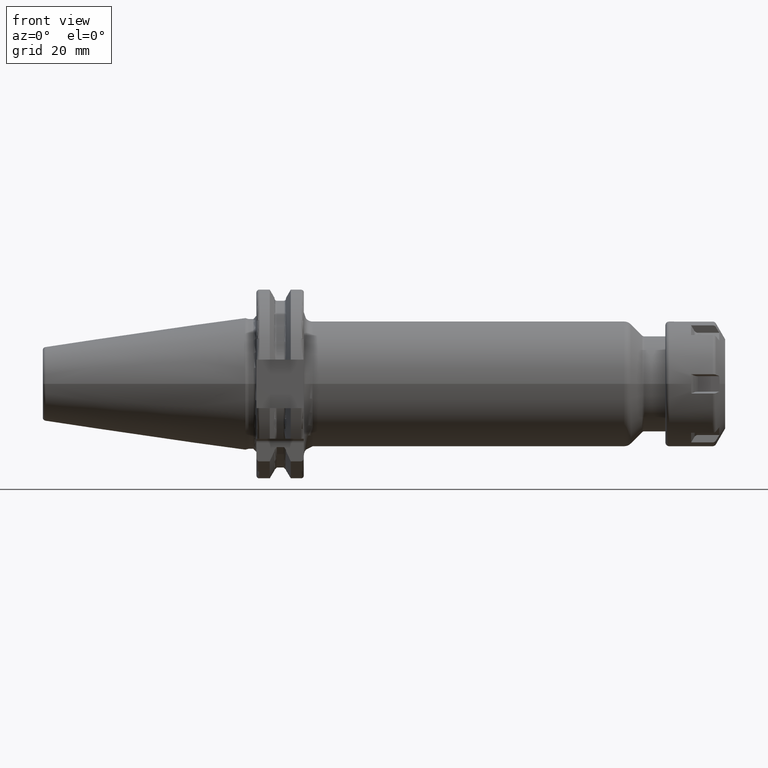
[diagram: clean part render]
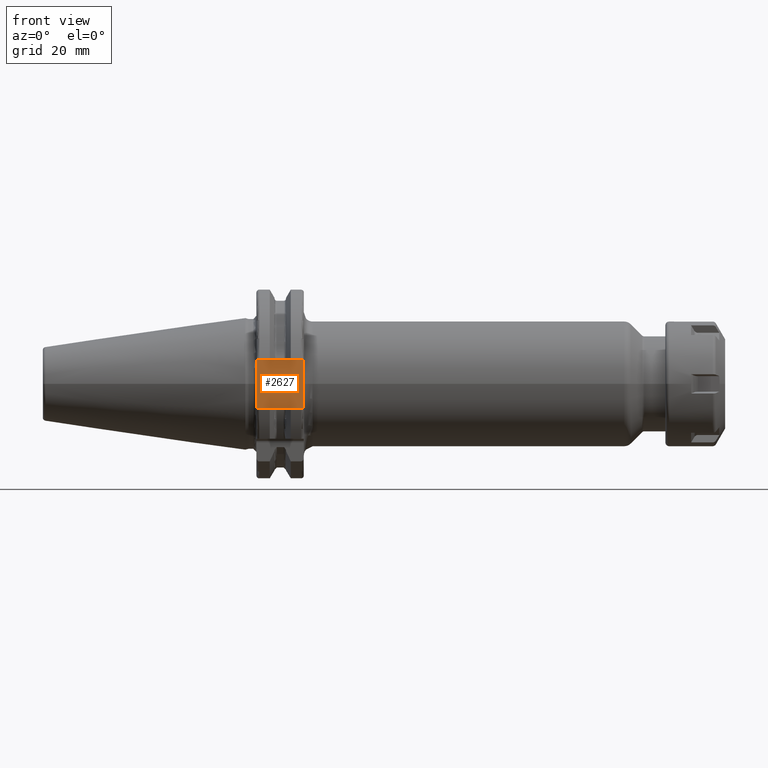
[diagram: same view with one face highlighted and labeled with its STEP entity id]
A machine part, front view. The second image highlights one B-rep face of the part: STEP entity #2627.
In plain terms, the highlighted planar face has unit normal (0, 1, 0).
Its self-contained STEP definition (entity closure, byte-faithful):
#170=DIRECTION('',(0.E0,0.E0,1.E0));
#171=VECTOR('',#170,1.62E1);
#172=CARTESIAN_POINT('',(1.905E1,-2.485E1,-8.1E0));
#173=LINE('',#172,#171);
#395=DIRECTION('',(0.E0,0.E0,1.E0));
#396=VECTOR('',#395,1.62E1);
#397=CARTESIAN_POINT('',(3.2E0,-2.485E1,-8.1E0));
#398=LINE('',#397,#396);
#699=DIRECTION('',(-1.E0,0.E0,0.E0));
#700=VECTOR('',#699,1.585E1);
#701=CARTESIAN_POINT('',(1.905E1,-2.485E1,8.1E0));
#702=LINE('',#701,#700);
#928=DIRECTION('',(-1.E0,0.E0,0.E0));
#929=VECTOR('',#928,1.585E1);
#930=CARTESIAN_POINT('',(1.905E1,-2.485E1,-8.1E0));
#931=LINE('',#930,#929);
#1427=CARTESIAN_POINT('',(1.905E1,-2.485E1,-8.1E0));
#1429=VERTEX_POINT('',#1427);
#1430=CARTESIAN_POINT('',(1.905E1,-2.485E1,8.1E0));
#1431=VERTEX_POINT('',#1430);
#1455=CARTESIAN_POINT('',(3.2E0,-2.485E1,-8.1E0));
#1457=VERTEX_POINT('',#1455);
#1458=CARTESIAN_POINT('',(3.2E0,-2.485E1,8.1E0));
#1459=VERTEX_POINT('',#1458);
#2616=CARTESIAN_POINT('',(1.905E1,-2.485E1,-8.1E0));
#2617=DIRECTION('',(0.E0,1.E0,0.E0));
#2618=DIRECTION('',(0.E0,0.E0,1.E0));
#2619=AXIS2_PLACEMENT_3D('',#2616,#2617,#2618);
#2620=PLANE('',#2619);
#2621=ORIENTED_EDGE('',*,*,#1799,.F.);
#2622=ORIENTED_EDGE('',*,*,#2600,.T.);
#2623=ORIENTED_EDGE('',*,*,#1954,.T.);
#2624=ORIENTED_EDGE('',*,*,#2409,.F.);
#2625=EDGE_LOOP('',(#2621,#2622,#2623,#2624));
#2626=FACE_OUTER_BOUND('',#2625,.F.);
#2627=ADVANCED_FACE('',(#2626),#2620,.F.);
#1799=EDGE_CURVE('',#1429,#1431,#173,.T.);
#1954=EDGE_CURVE('',#1457,#1459,#398,.T.);
#2409=EDGE_CURVE('',#1431,#1459,#702,.T.);
#2600=EDGE_CURVE('',#1429,#1457,#931,.T.);